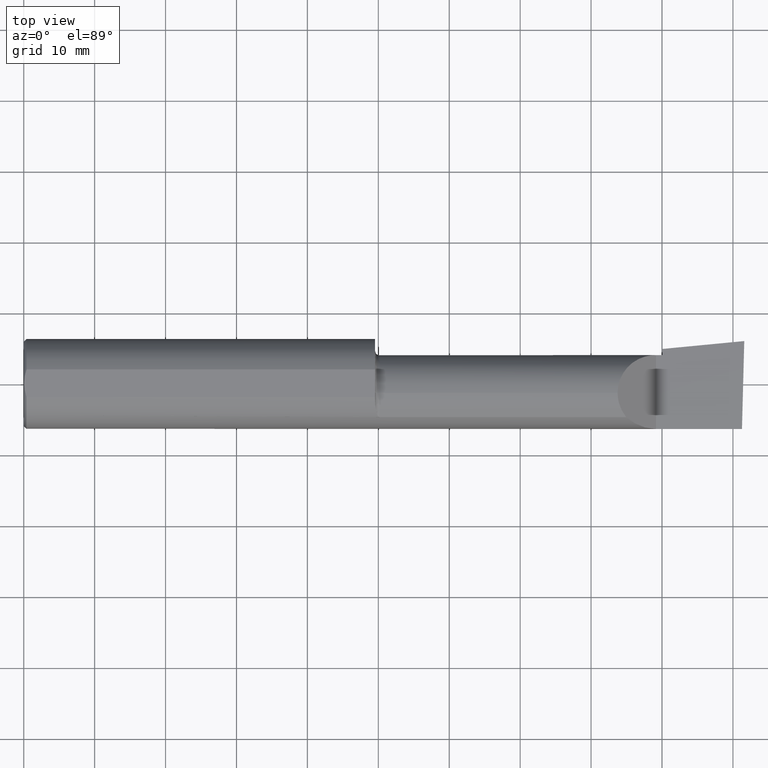
[diagram: clean part render]
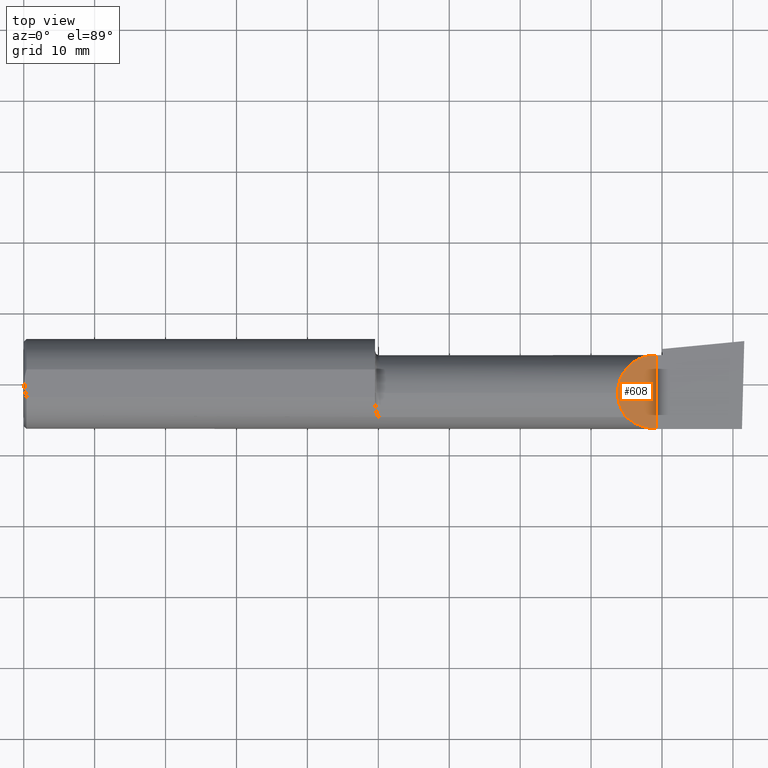
[diagram: same view with one face highlighted and labeled with its STEP entity id]
A machine part, top view. The second image highlights one B-rep face of the part: STEP entity #608.
In plain terms, the highlighted planar face has unit normal (-0.7071, 0, -0.7071).
Its self-contained STEP definition (entity closure, byte-faithful):
#31 = CARTESIAN_POINT ( 'NONE',  ( 3.509999999999999787, 0.1601499999999999035, -6.245698675651499853E-17 ) ) ;
#32 = EDGE_LOOP ( 'NONE', ( #563, #367, #721, #295 ) ) ;
#34 = FACE_OUTER_BOUND ( 'NONE', #32, .T. ) ;
#39 = CARTESIAN_POINT ( 'NONE',  ( 3.296849999999997394, -0.05299999999999998462, 0.2131499999999999506 ) ) ;
#43 = CARTESIAN_POINT ( 'NONE',  ( 3.509999999999999787, 0.1601499999999999035, -6.245698675651499853E-17 ) ) ;
#66 = VERTEX_POINT ( 'NONE', #39 ) ;
#85 = DIRECTION ( 'NONE',  ( -0.7071067811865439090, 0.0000000000000000000, -0.7071067811865511255 ) ) ;
#138 =( BOUNDED_CURVE ( )  B_SPLINE_CURVE ( 3, ( #340, #692, #158, #512 ),
 .UNSPECIFIED., .F., .T. ) 
 B_SPLINE_CURVE_WITH_KNOTS ( ( 4, 4 ),
 ( 5.604538515477344163, 6.283185307179586232 ),
 .UNSPECIFIED. ) 
 CURVE ( )  GEOMETRIC_REPRESENTATION_ITEM ( )  RATIONAL_B_SPLINE_CURVE ( ( 1.000000000000000000, 0.9619867256453020765, 0.9619867256453020765, 1.000000000000000000 ) ) 
 REPRESENTATION_ITEM ( '' )  );
#158 = CARTESIAN_POINT ( 'NONE',  ( 3.296849999999997394, -0.1021668565906572179, 0.2131499999999999506 ) ) ;
#169 = CARTESIAN_POINT ( 'NONE',  ( 3.296849999999997394, 0.07186037918017494641, 0.2131499999999999229 ) ) ;
#254 = VERTEX_POINT ( 'NONE', #423 ) ;
#273 = CARTESIAN_POINT ( 'NONE',  ( 3.390325100969866501, -0.2278791102234777877, 0.1196748990301320231 ) ) ;
#295 = ORIENTED_EDGE ( 'NONE', *, *, #432, .F. ) ;
#340 = CARTESIAN_POINT ( 'NONE',  ( 3.344079160038589293, -0.1868028301886799636, 0.1659208399614081619 ) ) ;
#358 = CARTESIAN_POINT ( 'NONE',  ( 3.509999999999999787, -0.2500000000000000555, -6.245698675651499853E-17 ) ) ;
#367 = ORIENTED_EDGE ( 'NONE', *, *, #509, .F. ) ;
#372 = EDGE_CURVE ( 'NONE', #254, #547, #606, .T. ) ;
#423 = CARTESIAN_POINT ( 'NONE',  ( 3.509999999999999787, -0.2498499999999999610, -6.245698675651499853E-17 ) ) ;
#428 = VECTOR ( 'NONE', #653, 39.37007874015748143 ) ;
#432 = EDGE_CURVE ( 'NONE', #66, #547, #654, .T. ) ;
#443 = DIRECTION ( 'NONE',  ( -0.7071067811865511255, 0.0000000000000000000, 0.7071067811865439090 ) ) ;
#456 = CARTESIAN_POINT ( 'NONE',  ( 3.448145753305725147, -0.2498500000000001831, 0.06185424669427438960 ) ) ;
#464 = CARTESIAN_POINT ( 'NONE',  ( 3.385139620819825446, 0.1601500000000001811, 0.1248603791801746327 ) ) ;
#489 =( BOUNDED_CURVE ( )  B_SPLINE_CURVE ( 3, ( #576, #456, #273, #629 ),
 .UNSPECIFIED., .F., .F. ) 
 B_SPLINE_CURVE_WITH_KNOTS ( ( 4, 4 ),
 ( 4.712388980384687898, 5.438654041019568730 ),
 .UNSPECIFIED. ) 
 CURVE ( )  GEOMETRIC_REPRESENTATION_ITEM ( )  RATIONAL_B_SPLINE_CURVE ( ( 1.000000000000000000, 0.9565258159410998662, 0.9565258159410998662, 1.000000000000000000 ) ) 
 REPRESENTATION_ITEM ( '' )  );
#500 = PLANE ( 'NONE',  #601 ) ;
#509 = EDGE_CURVE ( 'NONE', #254, #677, #489, .T. ) ;
#512 = CARTESIAN_POINT ( 'NONE',  ( 3.296849999999997394, -0.05299999999999998462, 0.2131499999999999506 ) ) ;
#524 = CARTESIAN_POINT ( 'NONE',  ( 3.344079160038589293, -0.1868028301886799636, 0.1659208399614081619 ) ) ;
#547 = VERTEX_POINT ( 'NONE', #31 ) ;
#563 = ORIENTED_EDGE ( 'NONE', *, *, #710, .F. ) ;
#576 = CARTESIAN_POINT ( 'NONE',  ( 3.509999999999999787, -0.2498499999999999610, -6.245698675651499853E-17 ) ) ;
#601 = AXIS2_PLACEMENT_3D ( 'NONE', #679, #85, #443 ) ;
#606 = LINE ( 'NONE', #358, #428 ) ;
#608 = ADVANCED_FACE ( 'NONE', ( #34 ), #500, .F. ) ;
#629 = CARTESIAN_POINT ( 'NONE',  ( 3.344079160038589293, -0.1868028301886799636, 0.1659208399614081619 ) ) ;
#653 = DIRECTION ( 'NONE',  ( -0.0000000000000000000, 1.000000000000000000, -0.0000000000000000000 ) ) ;
#654 =( BOUNDED_CURVE ( )  B_SPLINE_CURVE ( 3, ( #702, #169, #464, #43 ),
 .UNSPECIFIED., .F., .T. ) 
 B_SPLINE_CURVE_WITH_KNOTS ( ( 4, 4 ),
 ( 0.0000000000000000000, 1.570796326794898112 ),
 .UNSPECIFIED. ) 
 CURVE ( )  GEOMETRIC_REPRESENTATION_ITEM ( )  RATIONAL_B_SPLINE_CURVE ( ( 1.000000000000000000, 0.8047378541243646044, 0.8047378541243646044, 1.000000000000000000 ) ) 
 REPRESENTATION_ITEM ( '' )  );
#677 = VERTEX_POINT ( 'NONE', #524 ) ;
#679 = CARTESIAN_POINT ( 'NONE',  ( 3.509999999999999787, -0.2500000000000000555, -6.245698675651499853E-17 ) ) ;
#692 = CARTESIAN_POINT ( 'NONE',  ( 3.313215146136121447, -0.1485302233682063711, 0.1967848538638755085 ) ) ;
#702 = CARTESIAN_POINT ( 'NONE',  ( 3.296849999999997394, -0.05299999999999998462, 0.2131499999999999506 ) ) ;
#710 = EDGE_CURVE ( 'NONE', #677, #66, #138, .T. ) ;
#721 = ORIENTED_EDGE ( 'NONE', *, *, #372, .T. ) ;